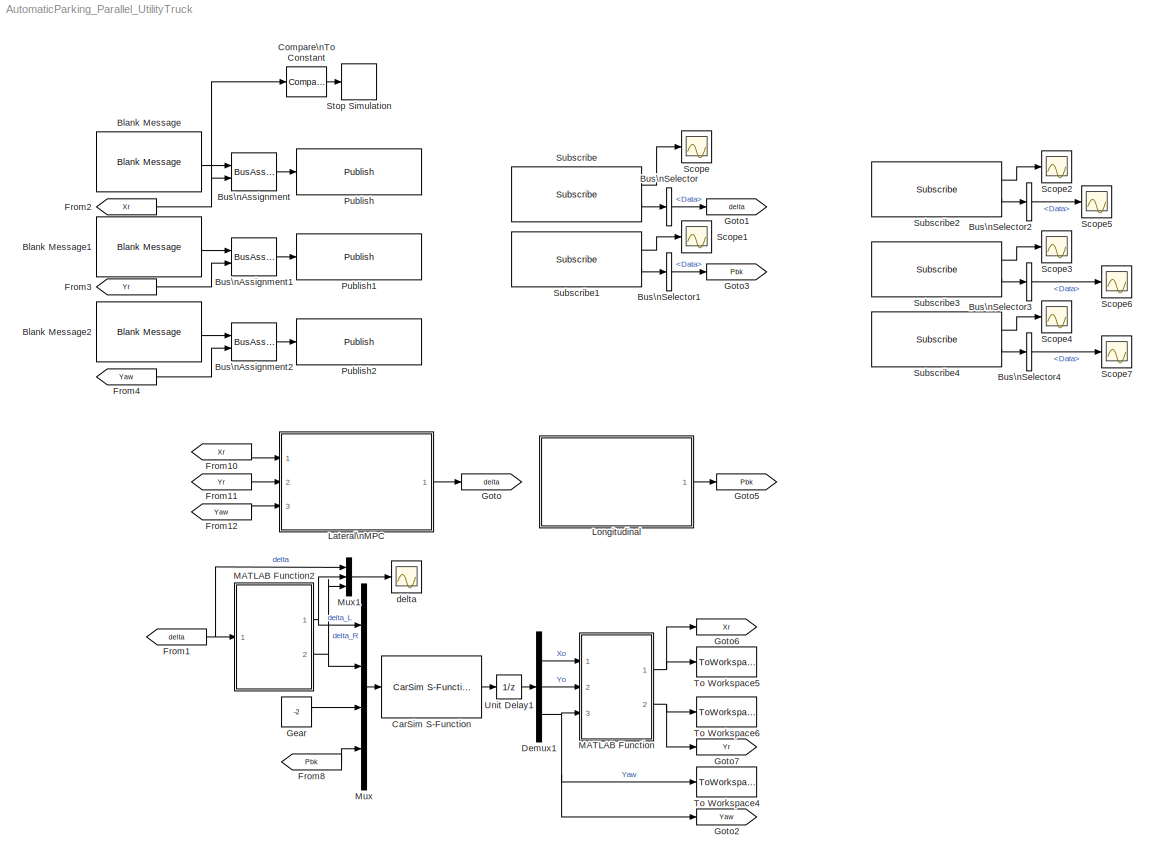
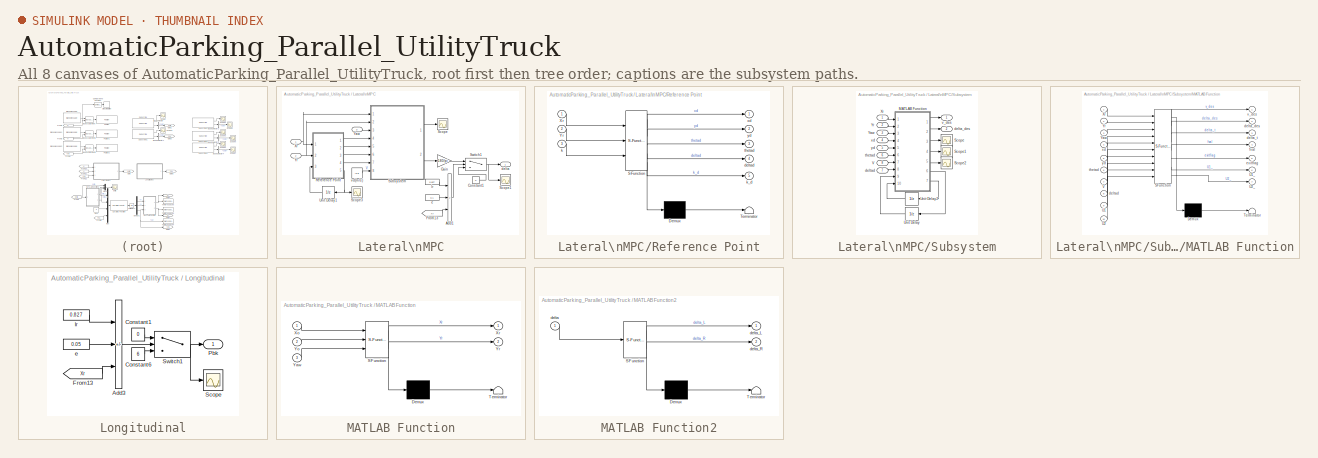
[diagram: thumbnail index - all 8 canvases of the model, root first then tree order]
MODEL AutomaticParking_Parallel_UtilityTruck
KIND model
BLOCK [Reference] Blank Message  REF=robotlib/Blank Message
  Ports = [0, 1]
  RTWMemSecDataConstants = Inherit from model
  RTWMemSecDataInternal = Inherit from model
  RTWMemSecDataParameters = Inherit from model
  RTWMemSecFuncExecute = Inherit from model
  RTWMemSecFuncInitTerm = Inherit from model
  SID = 545
  SampleTime = inf
  SourceBlock = robotlib/Blank Message
  SourceProductBaseCode = RR
  SourceType = ROS Blank Message
  entityType = std_msgs/Float64
  legacyBusStruct = off
  messageClass = Message
  messageType = std_msgs/Float64
BLOCK [Reference] Blank Message1  REF=robotlib/Blank Message
  Ports = [0, 1]
  RTWMemSecDataConstants = Inherit from model
  RTWMemSecDataInternal = Inherit from model
  RTWMemSecDataParameters = Inherit from model
  RTWMemSecFuncExecute = Inherit from model
  RTWMemSecFuncInitTerm = Inherit from model
  SID = 548
  SampleTime = inf
  SourceBlock = robotlib/Blank Message
  SourceProductBaseCode = RR
  SourceType = ROS Blank Message
  entityType = std_msgs/Float64
  legacyBusStruct = off
  messageClass = Message
  messageType = std_msgs/Float64
BLOCK [Reference] Blank Message2  REF=robotlib/Blank Message
  Ports = [0, 1]
  RTWMemSecDataConstants = Inherit from model
  RTWMemSecDataInternal = Inherit from model
  RTWMemSecDataParameters = Inherit from model
  RTWMemSecFuncExecute = Inherit from model
  RTWMemSecFuncInitTerm = Inherit from model
  SID = 551
  SampleTime = inf
  SourceBlock = robotlib/Blank Message
  SourceProductBaseCode = RR
  SourceType = ROS Blank Message
  entityType = std_msgs/Float64
  legacyBusStruct = off
  messageClass = Message
  messageType = std_msgs/Float64
BLOCK [BusAssignment] Bus\nAssignment
  AssignedSignals = Data
  Ports = [2, 1]
  SID = 546
BLOCK [BusAssignment] Bus\nAssignment1
  AssignedSignals = Data
  Ports = [2, 1]
  SID = 549
BLOCK [BusAssignment] Bus\nAssignment2
  AssignedSignals = Data
  Ports = [2, 1]
  SID = 552
BLOCK [BusSelector] Bus\nSelector
  OutputSignals = Data
  Ports = [1, 1]
  SID = 556
BLOCK [BusSelector] Bus\nSelector1
  OutputSignals = Data
  Ports = [1, 1]
  SID = 557
BLOCK [BusSelector] Bus\nSelector2
  OutputSignals = Data
  Ports = [1, 1]
  SID = 560
BLOCK [BusSelector] Bus\nSelector3
  OutputSignals = Data
  Ports = [1, 1]
  SID = 563
BLOCK [BusSelector] Bus\nSelector4
  OutputSignals = Data
  Ports = [1, 1]
  SID = 566
BLOCK [Reference] CarSim S-Function  REF=Solver_SF/CarSim S-Function
  AttributesFormatString = Vehicle Code: %<VehicleCode>
  MultiThreadCoSim = auto
  Ports = [1, 1]
  Priority = 1
  SID = 39
  SIMFILE = simfile
  SourceBlock = Solver_SF/CarSim S-Function
  SourceType = Vehicle math model library
  VehicleCode = i_s
BLOCK [Reference] Compare\nTo Constant  REF=simulink/Logic and Bit\nOperations/Compare\nTo Constant
  OutDataTypeStr = boolean
  Ports = [1, 1]
  RTWMemSecDataConstants = Inherit from model
  RTWMemSecDataInternal = Inherit from model
  RTWMemSecDataParameters = Inherit from model
  RTWMemSecFuncExecute = Inherit from model
  RTWMemSecFuncInitTerm = Inherit from model
  SID = 573
  SourceBlock = simulink/Logic and Bit\nOperations/Compare\nTo Constant
  SourceProductBaseCode = SL
  SourceType = Compare To Constant
  ZeroCross = on
  const = 0.827
  relop = <=
BLOCK [Demux] Demux1
  Outputs = 3
  Ports = [1, 3]
  SID = 60
BLOCK [From] From1
  GotoTag = delta
  SID = 121
  TagVisibility = global
BLOCK [From] From10
  Commented = on
  GotoTag = Xr
  SID = 237
  TagVisibility = global
BLOCK [From] From11
  Commented = on
  GotoTag = Yr
  SID = 238
  TagVisibility = global
BLOCK [From] From12
  Commented = on
  GotoTag = Yaw
  SID = 239
  TagVisibility = global
BLOCK [From] From2
  GotoTag = Xr
  SID = 495
  TagVisibility = global
BLOCK [From] From3
  GotoTag = Yr
  SID = 496
  TagVisibility = global
BLOCK [From] From4
  GotoTag = Yaw
  SID = 497
  TagVisibility = global
BLOCK [From] From8
  GotoTag = Pbk
  SID = 167
  TagVisibility = global
BLOCK [Constant] Gear
  SID = 90
  Value = -2
BLOCK [Goto] Goto
  Commented = on
  GotoTag = delta
  SID = 117
  TagVisibility = global
BLOCK [Goto] Goto1
  GotoTag = delta
  SID = 498
  TagVisibility = global
BLOCK [Goto] Goto2
  GotoTag = Yaw
  SID = 129
  TagVisibility = global
BLOCK [Goto] Goto3
  GotoTag = Pbk
  SID = 499
  TagVisibility = global
BLOCK [Goto] Goto5
  Commented = on
  GotoTag = Pbk
  SID = 166
  TagVisibility = global
BLOCK [Goto] Goto6
  GotoTag = Xr
  SID = 189
  TagVisibility = global
BLOCK [Goto] Goto7
  GotoTag = Yr
  SID = 190
  TagVisibility = global
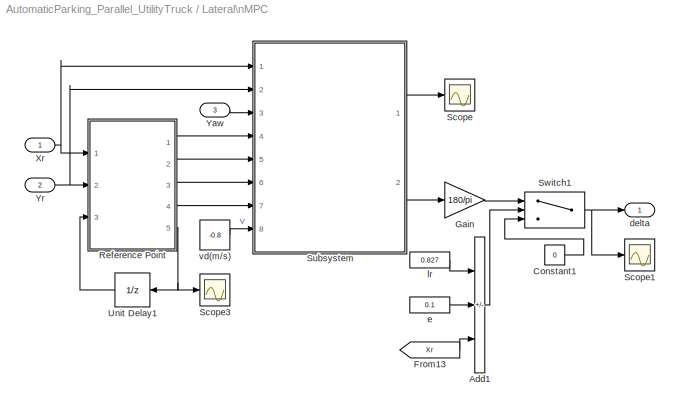
BLOCK [SubSystem] Lateral\nMPC
  Commented = on
  Ports = [3, 1]
  RequestExecContextInheritance = off
  SID = 253
BLOCK [Sum] Lateral\nMPC/Add1
  IconShape = rectangular
  Inputs = --+
  Ports = [3, 1]
  SID = 301
BLOCK [Constant] Lateral\nMPC/Constant1
  SID = 302
  Value = 0
BLOCK [From] Lateral\nMPC/From13
  GotoTag = Xr
  SID = 303
  TagVisibility = global
BLOCK [Gain] Lateral\nMPC/Gain
  Gain = 180/pi
  SID = 278
BLOCK [SubSystem] Lateral\nMPC/Reference Point
  ErrorFcn = Stateflow.Translate.translate
  PermitHierarchicalResolution = ExplicitOnly
  Ports = [3, 5]
  RequestExecContextInheritance = off
  SFBlockType = MATLAB Function
  SID = 246
  TreatAsAtomicUnit = on
BLOCK [Demux] Lateral\nMPC/Reference Point/ Demux 
  Outputs = 1
  Ports = [1, 1]
  SID = 246::98
BLOCK [S-Function] Lateral\nMPC/Reference Point/ SFunction 
  EnableBusSupport = on
  FunctionName = sf_sfun
  PortCounts = [3 6]
  Ports = [3, 6]
  SFcnIsStateOwnerBlock = off
  SFunctionDeploymentMode = off
  SID = 246::97
  Tag = Stateflow S-Function 5
BLOCK [Terminator] Lateral\nMPC/Reference Point/ Terminator 
  SID = 246::99
BLOCK [Inport] Lateral\nMPC/Reference Point/Xr
  SID = 246::86
BLOCK [Inport] Lateral\nMPC/Reference Point/Yr
  Port = 2
  SID = 246::87
BLOCK [Outport] Lateral\nMPC/Reference Point/deltad
  Port = 4
  SID = 246::96
  VectorParamsAs1DForOutWhenUnconnected = off
BLOCK [Inport] Lateral\nMPC/Reference Point/k
  Port = 3
  SID = 246::89
BLOCK [Outport] Lateral\nMPC/Reference Point/k_d
  Port = 5
  SID = 246::90
  VectorParamsAs1DForOutWhenUnconnected = off
BLOCK [Outport] Lateral\nMPC/Reference Point/thetad
  Port = 3
  SID = 246::95
  VectorParamsAs1DForOutWhenUnconnected = off
BLOCK [Outport] Lateral\nMPC/Reference Point/xd
  SID = 246::5
  VectorParamsAs1DForOutWhenUnconnected = off
BLOCK [Outport] Lateral\nMPC/Reference Point/yd
  Port = 2
  SID = 246::92
  VectorParamsAs1DForOutWhenUnconnected = off
BLOCK [Scope] Lateral\nMPC/Scope
  Floating = off
  NumInputPorts = 1
  Ports = [1]
  SID = 279
  ScopeSpecificationString = Simulink.scopes.TimeScopeBlockCfg('CurrentConfiguration', extmgr.ConfigurationSet(extmgr.Configuration('Core','General UI',true),extmgr.Configuration('Core','Source UI',true),extmgr.Configuration('Sources','WiredSimulink',true,'DataLoggingVariableName','ScopeData1'),extmgr.Configuration('Visuals','Time Domain',true,'SerializedDisplays',{struct('MinYLimReal','-0.915','MaxYLimReal','-0.765','YLabelR...<+1388ch>
BLOCK [Scope] Lateral\nMPC/Scope1
  Floating = off
  NumInputPorts = 1
  Ports = [1]
  SID = 280
  ScopeSpecificationString = Simulink.scopes.TimeScopeBlockCfg('CurrentConfiguration', extmgr.ConfigurationSet(extmgr.Configuration('Core','General UI',true),extmgr.Configuration('Core','Source UI',true),extmgr.Configuration('Sources','WiredSimulink',true,'DataLoggingVariableName','ScopeData3'),extmgr.Configuration('Visuals','Time Domain',true,'SerializedDisplays',{struct('MinYLimReal','-38.43203','MaxYLimReal','9.36318','YLa...<+1426ch>
BLOCK [Scope] Lateral\nMPC/Scope3
  Floating = off
  NumInputPorts = 1
  Ports = [1]
  SID = 248
  ScopeSpecificationString = Simulink.scopes.TimeScopeBlockCfg('CurrentConfiguration', extmgr.ConfigurationSet(extmgr.Configuration('Core','General UI',true),extmgr.Configuration('Core','Source UI',true),extmgr.Configuration('Sources','WiredSimulink',true,'DataLoggingVariableName','ScopeData2'),extmgr.Configuration('Visuals','Time Domain',true,'SerializedDisplays',{struct('MinYLimReal','-430.75','MaxYLimReal','3886.75','YLabe...<+1422ch>
BLOCK [SubSystem] Lateral\nMPC/Subsystem
  Ports = [8, 2]
  RequestExecContextInheritance = off
  SID = 340
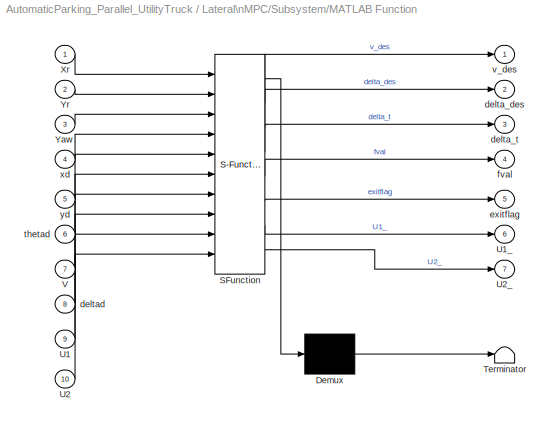
BLOCK [SubSystem] Lateral\nMPC/Subsystem/MATLAB Function
  ErrorFcn = Stateflow.Translate.translate
  PermitHierarchicalResolution = ExplicitOnly
  Ports = [10, 7]
  RequestExecContextInheritance = off
  SFBlockType = MATLAB Function
  SID = 337
  TreatAsAtomicUnit = on
BLOCK [Demux] Lateral\nMPC/Subsystem/MATLAB Function/ Demux 
  Outputs = 1
  Ports = [1, 1]
  SID = 337::20
BLOCK [S-Function] Lateral\nMPC/Subsystem/MATLAB Function/ SFunction 
  EnableBusSupport = on
  FunctionName = sf_sfun
  PortCounts = [10 8]
  Ports = [10, 8]
  SFcnIsStateOwnerBlock = off
  SFunctionDeploymentMode = off
  SID = 337::19
  Tag = Stateflow S-Function 6
BLOCK [Terminator] Lateral\nMPC/Subsystem/MATLAB Function/ Terminator 
  SID = 337::21
BLOCK [Inport] Lateral\nMPC/Subsystem/MATLAB Function/U1
  Port = 9
  SID = 337::29
BLOCK [Outport] Lateral\nMPC/Subsystem/MATLAB Function/U1_
  Port = 6
  SID = 337::35
BLOCK [Inport] Lateral\nMPC/Subsystem/MATLAB Function/U2
  Port = 10
  SID = 337::34
BLOCK [Outport] Lateral\nMPC/Subsystem/MATLAB Function/U2_
  Port = 7
  SID = 337::36
BLOCK [Inport] Lateral\nMPC/Subsystem/MATLAB Function/V
  Port = 7
  SID = 337::27
BLOCK [Inport] Lateral\nMPC/Subsystem/MATLAB Function/Xr
  SID = 337::1
BLOCK [Inport] Lateral\nMPC/Subsystem/MATLAB Function/Yaw
  Port = 3
  SID = 337::23
BLOCK [Inport] Lateral\nMPC/Subsystem/MATLAB Function/Yr
  Port = 2
  SID = 337::22
BLOCK [Outport] Lateral\nMPC/Subsystem/MATLAB Function/delta_des
  Port = 2
  SID = 337::30
BLOCK [Outport] Lateral\nMPC/Subsystem/MATLAB Function/delta_t
  Port = 3
  SID = 337::31
BLOCK [Inport] Lateral\nMPC/Subsystem/MATLAB Function/deltad
  Port = 8
  SID = 337::28
BLOCK [Outport] Lateral\nMPC/Subsystem/MATLAB Function/exitflag
  Port = 5
  SID = 337::33
BLOCK [Outport] Lateral\nMPC/Subsystem/MATLAB Function/fval
  Port = 4
  SID = 337::32
BLOCK [Inport] Lateral\nMPC/Subsystem/MATLAB Function/thetad
  Port = 6
  SID = 337::26
BLOCK [Outport] Lateral\nMPC/Subsystem/MATLAB Function/v_des
  SID = 337::5
BLOCK [Inport] Lateral\nMPC/Subsystem/MATLAB Function/xd
  Port = 4
  SID = 337::24
BLOCK [Inport] Lateral\nMPC/Subsystem/MATLAB Function/yd
  Port = 5
  SID = 337::25
BLOCK [Scope] Lateral\nMPC/Subsystem/Scope
  Floating = off
  NumInputPorts = 1
  Ports = [1]
  SID = 354
  ScopeSpecificationString = Simulink.scopes.TimeScopeBlockCfg('CurrentConfiguration', extmgr.ConfigurationSet(extmgr.Configuration('Core','General UI',true),extmgr.Configuration('Core','Source UI',true),extmgr.Configuration('Sources','WiredSimulink',true,'DataLoggingVariableName','ScopeData1'),extmgr.Configuration('Visuals','Time Domain',true,'SerializedDisplays',{struct('MinYLimReal','-0.00021','MaxYLimReal','0.00466','YLab...<+1382ch>
BLOCK [Scope] Lateral\nMPC/Subsystem/Scope1
  Floating = off
  NumInputPorts = 1
  Ports = [1]
  SID = 355
  ScopeSpecificationString = Simulink.scopes.TimeScopeBlockCfg('CurrentConfiguration', extmgr.ConfigurationSet(extmgr.Configuration('Core','General UI',true),extmgr.Configuration('Core','Source UI',true),extmgr.Configuration('Sources','WiredSimulink',true,'DataLoggingVariableName','ScopeData2'),extmgr.Configuration('Visuals','Time Domain',true,'SerializedDisplays',{struct('MinYLimReal','-1.03857','MaxYLimReal','0.6393','YLabe...<+1396ch>
BLOCK [Scope] Lateral\nMPC/Subsystem/Scope2
  Floating = off
  NumInputPorts = 1
  Ports = [1]
  SID = 356
  ScopeSpecificationString = Simulink.scopes.TimeScopeBlockCfg('CurrentConfiguration', extmgr.ConfigurationSet(extmgr.Configuration('Core','General UI',true),extmgr.Configuration('Core','Source UI',true),extmgr.Configuration('Sources','WiredSimulink',true,'DataLoggingVariableName','ScopeData3'),extmgr.Configuration('Visuals','Time Domain',true,'SerializedDisplays',{struct('MinYLimReal','0.9','MaxYLimReal','1.1','YLabelReal','...<+1349ch>
BLOCK [UnitDelay] Lateral\nMPC/Subsystem/Unit Delay
  HasFrameUpgradeWarning = on
  NameLocation = top
  SID = 338
  SampleTime = -1
BLOCK [UnitDelay] Lateral\nMPC/Subsystem/Unit Delay2
  HasFrameUpgradeWarning = on
  NameLocation = top
  SID = 339
  SampleTime = -1
BLOCK [Inport] Lateral\nMPC/Subsystem/V
  Port = 8
  SID = 347
BLOCK [Inport] Lateral\nMPC/Subsystem/Xr
  SID = 341
BLOCK [Inport] Lateral\nMPC/Subsystem/Yaw
  Port = 3
  SID = 343
BLOCK [Inport] Lateral\nMPC/Subsystem/Yr
  Port = 2
  SID = 342
BLOCK [Outport] Lateral\nMPC/Subsystem/delta_des
  Port = 2
  SID = 350
BLOCK [Inport] Lateral\nMPC/Subsystem/deltad
  Port = 7
  SID = 348
BLOCK [Inport] Lateral\nMPC/Subsystem/thetad
  Port = 6
  SID = 346
BLOCK [Outport] Lateral\nMPC/Subsystem/v_des
  SID = 349
BLOCK [Inport] Lateral\nMPC/Subsystem/xd
  Port = 4
  SID = 344
BLOCK [Inport] Lateral\nMPC/Subsystem/yd
  Port = 5
  SID = 345
BLOCK [Switch] Lateral\nMPC/Switch1
  InputSameDT = off
  SID = 304
  SaturateOnIntegerOverflow = off
BLOCK [UnitDelay] Lateral\nMPC/Unit Delay1
  HasFrameUpgradeWarning = on
  InitialCondition = 1
  NameLocation = top
  SID = 250
  SampleTime = -1
BLOCK [Inport] Lateral\nMPC/Xr
  SID = 257
BLOCK [Inport] Lateral\nMPC/Yaw
  Port = 3
  SID = 259
BLOCK [Inport] Lateral\nMPC/Yr
  Port = 2
  SID = 258
BLOCK [Outport] Lateral\nMPC/delta
  SID = 261
  VectorParamsAs1DForOutWhenUnconnected = off
BLOCK [Constant] Lateral\nMPC/e
  SID = 305
  Value = 0.1
BLOCK [Constant] Lateral\nMPC/lr
  SID = 307
  Value = 0.827
BLOCK [Constant] Lateral\nMPC/vd(m//s)
  SID = 252
  Value = -0.8
BLOCK [SubSystem] Longitudinal
  Commented = on
  Ports = [0, 1]
  RequestExecContextInheritance = off
  SID = 173
BLOCK [Sum] Longitudinal/Add3
  IconShape = rectangular
  Inputs = --+
  Ports = [3, 1]
  SID = 359
BLOCK [Constant] Longitudinal/Constant1
  SID = 365
  Value = 0
BLOCK [Constant] Longitudinal/Constant6
  SID = 137
  Value = 6
BLOCK [From] Longitudinal/From13
  GotoTag = Xr
  SID = 360
  TagVisibility = global
BLOCK [Outport] Longitudinal/Pbk
  SID = 177
  VectorParamsAs1DForOutWhenUnconnected = off
BLOCK [Scope] Longitudinal/Scope
  Floating = off
  NumInputPorts = 1
  Ports = [1]
  SID = 358
  ScopeSpecificationString = Simulink.scopes.TimeScopeBlockCfg('CurrentConfiguration', extmgr.ConfigurationSet(extmgr.Configuration('Core','General UI',true),extmgr.Configuration('Core','Source UI',true),extmgr.Configuration('Sources','WiredSimulink',true,'DataLoggingVariableName','ScopeData1'),extmgr.Configuration('Visuals','Time Domain',true,'SerializedDisplays',{struct('MinYLimReal','-1.25','MaxYLimReal','11.25','YLabelRea...<+1370ch>
BLOCK [Switch] Longitudinal/Switch1
  InputSameDT = off
  SID = 136
  SaturateOnIntegerOverflow = off
BLOCK [Constant] Longitudinal/e
  SID = 361
  Value = 0.05
BLOCK [Constant] Longitudinal/lr
  SID = 363
  Value = 0.827
BLOCK [SubSystem] MATLAB Function
  ErrorFcn = Stateflow.Translate.translate
  PermitHierarchicalResolution = ExplicitOnly
  Ports = [3, 2]
  RequestExecContextInheritance = off
  SFBlockType = MATLAB Function
  SID = 158
  TreatAsAtomicUnit = on
BLOCK [Demux] MATLAB Function/ Demux 
  Outputs = 1
  Ports = [1, 1]
  SID = 158::89
BLOCK [S-Function] MATLAB Function/ SFunction 
  EnableBusSupport = on
  FunctionName = sf_sfun
  PortCounts = [3 3]
  Ports = [3, 3]
  SFcnIsStateOwnerBlock = off
  SFunctionDeploymentMode = off
  SID = 158::88
  Tag = Stateflow S-Function 1
BLOCK [Terminator] MATLAB Function/ Terminator 
  SID = 158::90
BLOCK [Inport] MATLAB Function/Xo
  SID = 158::1
BLOCK [Outport] MATLAB Function/Xr
  SID = 158::5
  VectorParamsAs1DForOutWhenUnconnected = off
BLOCK [Inport] MATLAB Function/Yaw
  Port = 3
  SID = 158::86
BLOCK [Inport] MATLAB Function/Yo
  Port = 2
  SID = 158::85
BLOCK [Outport] MATLAB Function/Yr
  Port = 2
  SID = 158::87
  VectorParamsAs1DForOutWhenUnconnected = off
BLOCK [SubSystem] MATLAB Function2
  ErrorFcn = Stateflow.Translate.translate
  PermitHierarchicalResolution = ExplicitOnly
  Ports = [1, 2]
  RequestExecContextInheritance = off
  SFBlockType = MATLAB Function
  SID = 91
  TreatAsAtomicUnit = on
BLOCK [Demux] MATLAB Function2/ Demux 
  Outputs = 1
  Ports = [1, 1]
  SID = 91::24
BLOCK [S-Function] MATLAB Function2/ SFunction 
  EnableBusSupport = on
  FunctionName = sf_sfun
  PortCounts = [1 3]
  Ports = [1, 3]
  SFcnIsStateOwnerBlock = off
  SFunctionDeploymentMode = off
  SID = 91::23
  Tag = Stateflow S-Function 12
BLOCK [Terminator] MATLAB Function2/ Terminator 
  SID = 91::25
BLOCK [Inport] MATLAB Function2/delta
  SID = 91::1
BLOCK [Outport] MATLAB Function2/delta_L
  SID = 91::5
  VectorParamsAs1DForOutWhenUnconnected = off
BLOCK [Outport] MATLAB Function2/delta_R
  Port = 2
  SID = 91::22
  VectorParamsAs1DForOutWhenUnconnected = off
BLOCK [Mux] Mux
  DisplayOption = bar
  Ports = [4, 1]
  SID = 51
BLOCK [Mux] Mux1
  DisplayOption = bar
  Inputs = 3
  Ports = [3, 1]
  SID = 92
BLOCK [Reference] Publish  REF=robotlib/Publish
  Ports = [1]
  RTWMemSecDataConstants = Inherit from model
  RTWMemSecDataInternal = Inherit from model
  RTWMemSecDataParameters = Inherit from model
  RTWMemSecFuncExecute = Inherit from model
  RTWMemSecFuncInitTerm = Inherit from model
  SID = 547
  SourceBlock = robotlib/Publish
  SourceProductBaseCode = RR
  SourceType = ROS Publish
  legacyBusStruct = off
  messageQueueLength = 1
  messageType = std_msgs/Float64
  topic = /Xr
  topicSource = Specify your own
BLOCK [Reference] Publish1  REF=robotlib/Publish
  Ports = [1]
  RTWMemSecDataConstants = Inherit from model
  RTWMemSecDataInternal = Inherit from model
  RTWMemSecDataParameters = Inherit from model
  RTWMemSecFuncExecute = Inherit from model
  RTWMemSecFuncInitTerm = Inherit from model
  SID = 550
  SourceBlock = robotlib/Publish
  SourceProductBaseCode = RR
  SourceType = ROS Publish
  legacyBusStruct = off
  messageQueueLength = 1
  messageType = std_msgs/Float64
  topic = /Yr
  topicSource = Specify your own
BLOCK [Reference] Publish2  REF=robotlib/Publish
  Ports = [1]
  RTWMemSecDataConstants = Inherit from model
  RTWMemSecDataInternal = Inherit from model
  RTWMemSecDataParameters = Inherit from model
  RTWMemSecFuncExecute = Inherit from model
  RTWMemSecFuncInitTerm = Inherit from model
  SID = 553
  SourceBlock = robotlib/Publish
  SourceProductBaseCode = RR
  SourceType = ROS Publish
  legacyBusStruct = off
  messageQueueLength = 1
  messageType = std_msgs/Float64
  topic = /Yaw
  topicSource = Specify your own
BLOCK [Scope] Scope
  Floating = off
  NumInputPorts = 1
  Ports = [1]
  SID = 558
  ScopeSpecificationString = Simulink.scopes.TimeScopeBlockCfg('CurrentConfiguration', extmgr.ConfigurationSet(extmgr.Configuration('Core','General UI',true),extmgr.Configuration('Core','Source UI',true),extmgr.Configuration('Sources','WiredSimulink',true,'DataLoggingVariableName','ScopeData1'),extmgr.Configuration('Visuals','Time Domain',true),extmgr.Configuration('Tools','Plot Navigation',true),extmgr.Configuration('Tools',...<+40ch>
BLOCK [Scope] Scope1
  Floating = off
  NumInputPorts = 1
  Ports = [1]
  SID = 559
  ScopeSpecificationString = Simulink.scopes.TimeScopeBlockCfg('CurrentConfiguration', extmgr.ConfigurationSet(extmgr.Configuration('Core','General UI',true),extmgr.Configuration('Core','Source UI',true),extmgr.Configuration('Sources','WiredSimulink',true,'DataLoggingVariableName','ScopeData2'),extmgr.Configuration('Visuals','Time Domain',true),extmgr.Configuration('Tools','Plot Navigation',true),extmgr.Configuration('Tools',...<+40ch>
BLOCK [Scope] Scope2
  Floating = off
  NumInputPorts = 1
  Ports = [1]
  SID = 561
  ScopeSpecificationString = Simulink.scopes.TimeScopeBlockCfg('CurrentConfiguration', extmgr.ConfigurationSet(extmgr.Configuration('Core','General UI',true),extmgr.Configuration('Core','Source UI',true),extmgr.Configuration('Sources','WiredSimulink',true,'DataLoggingVariableName','ScopeData3'),extmgr.Configuration('Visuals','Time Domain',true),extmgr.Configuration('Tools','Plot Navigation',true),extmgr.Configuration('Tools',...<+40ch>
BLOCK [Scope] Scope3
  Floating = off
  NumInputPorts = 1
  Ports = [1]
  SID = 564
  ScopeSpecificationString = Simulink.scopes.TimeScopeBlockCfg('CurrentConfiguration', extmgr.ConfigurationSet(extmgr.Configuration('Core','General UI',true),extmgr.Configuration('Core','Source UI',true),extmgr.Configuration('Sources','WiredSimulink',true,'DataLoggingVariableName','ScopeData4'),extmgr.Configuration('Visuals','Time Domain',true),extmgr.Configuration('Tools','Plot Navigation',true),extmgr.Configuration('Tools',...<+40ch>
BLOCK [Scope] Scope4
  Floating = off
  NumInputPorts = 1
  Ports = [1]
  SID = 567
  ScopeSpecificationString = Simulink.scopes.TimeScopeBlockCfg('CurrentConfiguration', extmgr.ConfigurationSet(extmgr.Configuration('Core','General UI',true),extmgr.Configuration('Core','Source UI',true),extmgr.Configuration('Sources','WiredSimulink',true,'DataLoggingVariableName','ScopeData5'),extmgr.Configuration('Visuals','Time Domain',true),extmgr.Configuration('Tools','Plot Navigation',true),extmgr.Configuration('Tools',...<+40ch>
BLOCK [Scope] Scope5
  Floating = off
  NumInputPorts = 1
  Ports = [1]
  SID = 569
  ScopeSpecificationString = Simulink.scopes.TimeScopeBlockCfg('CurrentConfiguration', extmgr.ConfigurationSet(extmgr.Configuration('Core','General UI',true),extmgr.Configuration('Core','Source UI',true),extmgr.Configuration('Sources','WiredSimulink',true,'DataLoggingVariableName','ScopeData6'),extmgr.Configuration('Visuals','Time Domain',true),extmgr.Configuration('Tools','Plot Navigation',true),extmgr.Configuration('Tools',...<+40ch>
BLOCK [Scope] Scope6
  Floating = off
  NumInputPorts = 1
  Ports = [1]
  SID = 570
  ScopeSpecificationString = Simulink.scopes.TimeScopeBlockCfg('CurrentConfiguration', extmgr.ConfigurationSet(extmgr.Configuration('Core','General UI',true),extmgr.Configuration('Core','Source UI',true),extmgr.Configuration('Sources','WiredSimulink',true,'DataLoggingVariableName','ScopeData7'),extmgr.Configuration('Visuals','Time Domain',true),extmgr.Configuration('Tools','Plot Navigation',true),extmgr.Configuration('Tools',...<+40ch>
BLOCK [Scope] Scope7
  Floating = off
  NumInputPorts = 1
  Ports = [1]
  SID = 571
  ScopeSpecificationString = Simulink.scopes.TimeScopeBlockCfg('CurrentConfiguration', extmgr.ConfigurationSet(extmgr.Configuration('Core','General UI',true),extmgr.Configuration('Core','Source UI',true),extmgr.Configuration('Sources','WiredSimulink',true,'DataLoggingVariableName','ScopeData8'),extmgr.Configuration('Visuals','Time Domain',true),extmgr.Configuration('Tools','Plot Navigation',true),extmgr.Configuration('Tools',...<+40ch>
BLOCK [Stop] Stop Simulation
  SID = 572
BLOCK [Reference] Subscribe  REF=robotlib/Subscribe
  Ports = [0, 2]
  RTWMemSecDataConstants = Inherit from model
  RTWMemSecDataInternal = Inherit from model
  RTWMemSecDataParameters = Inherit from model
  RTWMemSecFuncExecute = Inherit from model
  RTWMemSecFuncInitTerm = Inherit from model
  SID = 554
  SampleTime = -1
  SourceBlock = robotlib/Subscribe
  SourceProductBaseCode = RR
  SourceType = ROS Subscribe
  legacyBusStruct = off
  messageQueueLength = 1
  messageType = std_msgs/Float64
  topic = /delta
  topicSource = Specify your own
BLOCK [Reference] Subscribe1  REF=robotlib/Subscribe
  Ports = [0, 2]
  RTWMemSecDataConstants = Inherit from model
  RTWMemSecDataInternal = Inherit from model
  RTWMemSecDataParameters = Inherit from model
  RTWMemSecFuncExecute = Inherit from model
  RTWMemSecFuncInitTerm = Inherit from model
  SID = 555
  SampleTime = -1
  SourceBlock = robotlib/Subscribe
  SourceProductBaseCode = RR
  SourceType = ROS Subscribe
  legacyBusStruct = off
  messageQueueLength = 1
  messageType = std_msgs/Float64
  topic = /Pbk
  topicSource = Specify your own
BLOCK [Reference] Subscribe2  REF=robotlib/Subscribe
  Ports = [0, 2]
  RTWMemSecDataConstants = Inherit from model
  RTWMemSecDataInternal = Inherit from model
  RTWMemSecDataParameters = Inherit from model
  RTWMemSecFuncExecute = Inherit from model
  RTWMemSecFuncInitTerm = Inherit from model
  SID = 562
  SampleTime = -1
  SourceBlock = robotlib/Subscribe
  SourceProductBaseCode = RR
  SourceType = ROS Subscribe
  legacyBusStruct = off
  messageQueueLength = 1
  messageType = std_msgs/Float64
  topic = /delta_t
  topicSource = Specify your own
BLOCK [Reference] Subscribe3  REF=robotlib/Subscribe
  Ports = [0, 2]
  RTWMemSecDataConstants = Inherit from model
  RTWMemSecDataInternal = Inherit from model
  RTWMemSecDataParameters = Inherit from model
  RTWMemSecFuncExecute = Inherit from model
  RTWMemSecFuncInitTerm = Inherit from model
  SID = 565
  SampleTime = -1
  SourceBlock = robotlib/Subscribe
  SourceProductBaseCode = RR
  SourceType = ROS Subscribe
  legacyBusStruct = off
  messageQueueLength = 1
  messageType = std_msgs/Float64
  topic = /fval
  topicSource = Specify your own
BLOCK [Reference] Subscribe4  REF=robotlib/Subscribe
  Ports = [0, 2]
  RTWMemSecDataConstants = Inherit from model
  RTWMemSecDataInternal = Inherit from model
  RTWMemSecDataParameters = Inherit from model
  RTWMemSecFuncExecute = Inherit from model
  RTWMemSecFuncInitTerm = Inherit from model
  SID = 568
  SampleTime = -1
  SourceBlock = robotlib/Subscribe
  SourceProductBaseCode = RR
  SourceType = ROS Subscribe
  legacyBusStruct = off
  messageQueueLength = 1
  messageType = std_msgs/Float64
  topic = /exitflag
  topicSource = Specify your own
BLOCK [ToWorkspace] To Workspace4
  FixptAsFi = on
  MaxDataPoints = inf
  Ports = [1]
  SID = 88
  SampleTime = -1
  SaveFormat = Timeseries
  VariableName = yaw
BLOCK [ToWorkspace] To Workspace5
  FixptAsFi = on
  MaxDataPoints = inf
  Ports = [1]
  SID = 159
  SampleTime = -1
  SaveFormat = Timeseries
  VariableName = Xr
BLOCK [ToWorkspace] To Workspace6
  FixptAsFi = on
  MaxDataPoints = inf
  Ports = [1]
  SID = 160
  SampleTime = -1
  SaveFormat = Timeseries
  VariableName = Yr
BLOCK [UnitDelay] Unit Delay1
  HasFrameUpgradeWarning = on
  InitialCondition = [9.432 1.1 0]
  SID = 364
  SampleTime = -1
BLOCK [Scope] delta
  Floating = off
  NumInputPorts = 1
  Ports = [1]
  SID = 93
  ScopeSpecificationString = Simulink.scopes.TimeScopeBlockCfg('CurrentConfiguration', extmgr.ConfigurationSet(extmgr.Configuration('Core','General UI',true,'FigureColor',[1 1 1]),extmgr.Configuration('Core','Source UI',true),extmgr.Configuration('Sources','WiredSimulink',true,'DataLoggingVariableName','ScopeData1'),extmgr.Configuration('Visuals','Time Domain',true,'SerializedDisplays',{struct('MinYLimReal','-40.94103','MaxYL...<+1834ch>
LINE Blank Message1:1 -> Bus\nAssignment1:1
LINE Blank Message2:1 -> Bus\nAssignment2:1
LINE Blank Message:1 -> Bus\nAssignment:1
LINE Bus\nAssignment1:1 -> Publish1:1
LINE Bus\nAssignment2:1 -> Publish2:1
LINE Bus\nAssignment:1 -> Publish:1
LINE Bus\nSelector1:1 -> Goto3:1
LINE Bus\nSelector2:1 -> Scope5:1
LINE Bus\nSelector3:1 -> Scope6:1
LINE Bus\nSelector4:1 -> Scope7:1
LINE Bus\nSelector:1 -> Goto1:1
LINE CarSim S-Function:1 -> Unit Delay1:1
LINE Compare\nTo Constant:1 -> Stop Simulation:1
LINE Demux1:1 -> MATLAB Function:1
LINE Demux1:2 -> MATLAB Function:2
NET Demux1:3 -> Goto2:1, MATLAB Function:3, To Workspace4:1
LINE From10:1 -> Lateral\nMPC:1
LINE From11:1 -> Lateral\nMPC:2
LINE From12:1 -> Lateral\nMPC:3
NET From1:1 -> MATLAB Function2:1, Mux1:1
NET From2:1 -> Bus\nAssignment:2, Compare\nTo Constant:1
LINE From3:1 -> Bus\nAssignment1:2
LINE From4:1 -> Bus\nAssignment2:2
LINE From8:1 -> Mux:4
LINE Gear:1 -> Mux:3
LINE Lateral\nMPC/Add1:1 -> Lateral\nMPC/Switch1:2
LINE Lateral\nMPC/Constant1:1 -> Lateral\nMPC/Switch1:3
LINE Lateral\nMPC/From13:1 -> Lateral\nMPC/Add1:3
LINE Lateral\nMPC/Gain:1 -> Lateral\nMPC/Switch1:1
LINE Lateral\nMPC/Reference Point/ Demux :1 -> Lateral\nMPC/Reference Point/ Terminator :1
LINE Lateral\nMPC/Reference Point/ SFunction :1 -> Lateral\nMPC/Reference Point/ Demux :1
LINE Lateral\nMPC/Reference Point/ SFunction :2 -> Lateral\nMPC/Reference Point/xd:1
LINE Lateral\nMPC/Reference Point/ SFunction :3 -> Lateral\nMPC/Reference Point/yd:1
LINE Lateral\nMPC/Reference Point/ SFunction :4 -> Lateral\nMPC/Reference Point/thetad:1
LINE Lateral\nMPC/Reference Point/ SFunction :5 -> Lateral\nMPC/Reference Point/deltad:1
LINE Lateral\nMPC/Reference Point/ SFunction :6 -> Lateral\nMPC/Reference Point/k_d:1
LINE Lateral\nMPC/Reference Point/Xr:1 -> Lateral\nMPC/Reference Point/ SFunction :1
LINE Lateral\nMPC/Reference Point/Yr:1 -> Lateral\nMPC/Reference Point/ SFunction :2
LINE Lateral\nMPC/Reference Point/k:1 -> Lateral\nMPC/Reference Point/ SFunction :3
LINE Lateral\nMPC/Reference Point:1 -> Lateral\nMPC/Subsystem:4
LINE Lateral\nMPC/Reference Point:2 -> Lateral\nMPC/Subsystem:5
LINE Lateral\nMPC/Reference Point:3 -> Lateral\nMPC/Subsystem:6
LINE Lateral\nMPC/Reference Point:4 -> Lateral\nMPC/Subsystem:7
NET Lateral\nMPC/Reference Point:5 -> Lateral\nMPC/Scope3:1, Lateral\nMPC/Unit Delay1:1
LINE Lateral\nMPC/Subsystem/MATLAB Function/ Demux :1 -> Lateral\nMPC/Subsystem/MATLAB Function/ Terminator :1
LINE Lateral\nMPC/Subsystem/MATLAB Function/ SFunction :1 -> Lateral\nMPC/Subsystem/MATLAB Function/ Demux :1
LINE Lateral\nMPC/Subsystem/MATLAB Function/ SFunction :2 -> Lateral\nMPC/Subsystem/MATLAB Function/v_des:1
LINE Lateral\nMPC/Subsystem/MATLAB Function/ SFunction :3 -> Lateral\nMPC/Subsystem/MATLAB Function/delta_des:1
LINE Lateral\nMPC/Subsystem/MATLAB Function/ SFunction :4 -> Lateral\nMPC/Subsystem/MATLAB Function/delta_t:1
LINE Lateral\nMPC/Subsystem/MATLAB Function/ SFunction :5 -> Lateral\nMPC/Subsystem/MATLAB Function/fval:1
LINE Lateral\nMPC/Subsystem/MATLAB Function/ SFunction :6 -> Lateral\nMPC/Subsystem/MATLAB Function/exitflag:1
LINE Lateral\nMPC/Subsystem/MATLAB Function/ SFunction :7 -> Lateral\nMPC/Subsystem/MATLAB Function/U1_:1
LINE Lateral\nMPC/Subsystem/MATLAB Function/ SFunction :8 -> Lateral\nMPC/Subsystem/MATLAB Function/U2_:1
LINE Lateral\nMPC/Subsystem/MATLAB Function/U1:1 -> Lateral\nMPC/Subsystem/MATLAB Function/ SFunction :9
LINE Lateral\nMPC/Subsystem/MATLAB Function/U2:1 -> Lateral\nMPC/Subsystem/MATLAB Function/ SFunction :10
LINE Lateral\nMPC/Subsystem/MATLAB Function/V:1 -> Lateral\nMPC/Subsystem/MATLAB Function/ SFunction :7
LINE Lateral\nMPC/Subsystem/MATLAB Function/Xr:1 -> Lateral\nMPC/Subsystem/MATLAB Function/ SFunction :1
LINE Lateral\nMPC/Subsystem/MATLAB Function/Yaw:1 -> Lateral\nMPC/Subsystem/MATLAB Function/ SFunction :3
LINE Lateral\nMPC/Subsystem/MATLAB Function/Yr:1 -> Lateral\nMPC/Subsystem/MATLAB Function/ SFunction :2
LINE Lateral\nMPC/Subsystem/MATLAB Function/deltad:1 -> Lateral\nMPC/Subsystem/MATLAB Function/ SFunction :8
LINE Lateral\nMPC/Subsystem/MATLAB Function/thetad:1 -> Lateral\nMPC/Subsystem/MATLAB Function/ SFunction :6
LINE Lateral\nMPC/Subsystem/MATLAB Function/xd:1 -> Lateral\nMPC/Subsystem/MATLAB Function/ SFunction :4
LINE Lateral\nMPC/Subsystem/MATLAB Function/yd:1 -> Lateral\nMPC/Subsystem/MATLAB Function/ SFunction :5
LINE Lateral\nMPC/Subsystem/MATLAB Function:1 -> Lateral\nMPC/Subsystem/v_des:1
LINE Lateral\nMPC/Subsystem/MATLAB Function:2 -> Lateral\nMPC/Subsystem/delta_des:1
LINE Lateral\nMPC/Subsystem/MATLAB Function:3 -> Lateral\nMPC/Subsystem/Scope:1
LINE Lateral\nMPC/Subsystem/MATLAB Function:4 -> Lateral\nMPC/Subsystem/Scope1:1
LINE Lateral\nMPC/Subsystem/MATLAB Function:5 -> Lateral\nMPC/Subsystem/Scope2:1
LINE Lateral\nMPC/Subsystem/MATLAB Function:6 -> Lateral\nMPC/Subsystem/Unit Delay:1
LINE Lateral\nMPC/Subsystem/MATLAB Function:7 -> Lateral\nMPC/Subsystem/Unit Delay2:1
LINE Lateral\nMPC/Subsystem/Unit Delay2:1 -> Lateral\nMPC/Subsystem/MATLAB Function:10
LINE Lateral\nMPC/Subsystem/Unit Delay:1 -> Lateral\nMPC/Subsystem/MATLAB Function:9
LINE Lateral\nMPC/Subsystem/V:1 -> Lateral\nMPC/Subsystem/MATLAB Function:7
LINE Lateral\nMPC/Subsystem/Xr:1 -> Lateral\nMPC/Subsystem/MATLAB Function:1
LINE Lateral\nMPC/Subsystem/Yaw:1 -> Lateral\nMPC/Subsystem/MATLAB Function:3
LINE Lateral\nMPC/Subsystem/Yr:1 -> Lateral\nMPC/Subsystem/MATLAB Function:2
LINE Lateral\nMPC/Subsystem/deltad:1 -> Lateral\nMPC/Subsystem/MATLAB Function:8
LINE Lateral\nMPC/Subsystem/thetad:1 -> Lateral\nMPC/Subsystem/MATLAB Function:6
LINE Lateral\nMPC/Subsystem/xd:1 -> Lateral\nMPC/Subsystem/MATLAB Function:4
LINE Lateral\nMPC/Subsystem/yd:1 -> Lateral\nMPC/Subsystem/MATLAB Function:5
LINE Lateral\nMPC/Subsystem:1 -> Lateral\nMPC/Scope:1
LINE Lateral\nMPC/Subsystem:2 -> Lateral\nMPC/Gain:1
NET Lateral\nMPC/Switch1:1 -> Lateral\nMPC/Scope1:1, Lateral\nMPC/delta:1
LINE Lateral\nMPC/Unit Delay1:1 -> Lateral\nMPC/Reference Point:3
NET Lateral\nMPC/Xr:1 -> Lateral\nMPC/Reference Point:1, Lateral\nMPC/Subsystem:1
LINE Lateral\nMPC/Yaw:1 -> Lateral\nMPC/Subsystem:3
NET Lateral\nMPC/Yr:1 -> Lateral\nMPC/Reference Point:2, Lateral\nMPC/Subsystem:2
LINE Lateral\nMPC/e:1 -> Lateral\nMPC/Add1:2
LINE Lateral\nMPC/lr:1 -> Lateral\nMPC/Add1:1
LINE Lateral\nMPC/vd(m//s):1 -> Lateral\nMPC/Subsystem:8
LINE Lateral\nMPC:1 -> Goto:1
LINE Longitudinal/Add3:1 -> Longitudinal/Switch1:2
LINE Longitudinal/Constant1:1 -> Longitudinal/Switch1:1
LINE Longitudinal/Constant6:1 -> Longitudinal/Switch1:3
LINE Longitudinal/From13:1 -> Longitudinal/Add3:3
NET Longitudinal/Switch1:1 -> Longitudinal/Pbk:1, Longitudinal/Scope:1
LINE Longitudinal/e:1 -> Longitudinal/Add3:2
LINE Longitudinal/lr:1 -> Longitudinal/Add3:1
LINE Longitudinal:1 -> Goto5:1
LINE MATLAB Function/ Demux :1 -> MATLAB Function/ Terminator :1
LINE MATLAB Function/ SFunction :1 -> MATLAB Function/ Demux :1
LINE MATLAB Function/ SFunction :2 -> MATLAB Function/Xr:1
LINE MATLAB Function/ SFunction :3 -> MATLAB Function/Yr:1
LINE MATLAB Function/Xo:1 -> MATLAB Function/ SFunction :1
LINE MATLAB Function/Yaw:1 -> MATLAB Function/ SFunction :3
LINE MATLAB Function/Yo:1 -> MATLAB Function/ SFunction :2
LINE MATLAB Function2/ Demux :1 -> MATLAB Function2/ Terminator :1
LINE MATLAB Function2/ SFunction :1 -> MATLAB Function2/ Demux :1
LINE MATLAB Function2/ SFunction :2 -> MATLAB Function2/delta_L:1
LINE MATLAB Function2/ SFunction :3 -> MATLAB Function2/delta_R:1
LINE MATLAB Function2/delta:1 -> MATLAB Function2/ SFunction :1
NET MATLAB Function2:1 -> Mux1:2, Mux:1
NET MATLAB Function2:2 -> Mux1:3, Mux:2
NET MATLAB Function:1 -> Goto6:1, To Workspace5:1
NET MATLAB Function:2 -> Goto7:1, To Workspace6:1
LINE Mux1:1 -> delta:1
LINE Mux:1 -> CarSim S-Function:1
LINE Subscribe1:1 -> Scope1:1
LINE Subscribe1:2 -> Bus\nSelector1:1
LINE Subscribe2:1 -> Scope2:1
LINE Subscribe2:2 -> Bus\nSelector2:1
LINE Subscribe3:1 -> Scope3:1
LINE Subscribe3:2 -> Bus\nSelector3:1
LINE Subscribe4:1 -> Scope4:1
LINE Subscribe4:2 -> Bus\nSelector4:1
LINE Subscribe:1 -> Scope:1
LINE Subscribe:2 -> Bus\nSelector:1
LINE Unit Delay1:1 -> Demux1:1
note: NET lines group one-source signal fan-out (src -> all destinations, sorted); 1:1 wires keep LINE
CHART MATLAB Function states=1 transitions=1
  STATE_LABEL 'eML_blk_kernel()'
CHART Lateral\nMPC/Reference Point states=1 transitions=1
  STATE_LABEL 'eML_blk_kernel()'
CHART Lateral\nMPC/Subsystem/MATLAB Function states=1 transitions=1
  STATE_LABEL 'eML_blk_kernel()'
CHART MATLAB Function2 states=1 transitions=1
  STATE_LABEL 'eML_blk_kernel()'
